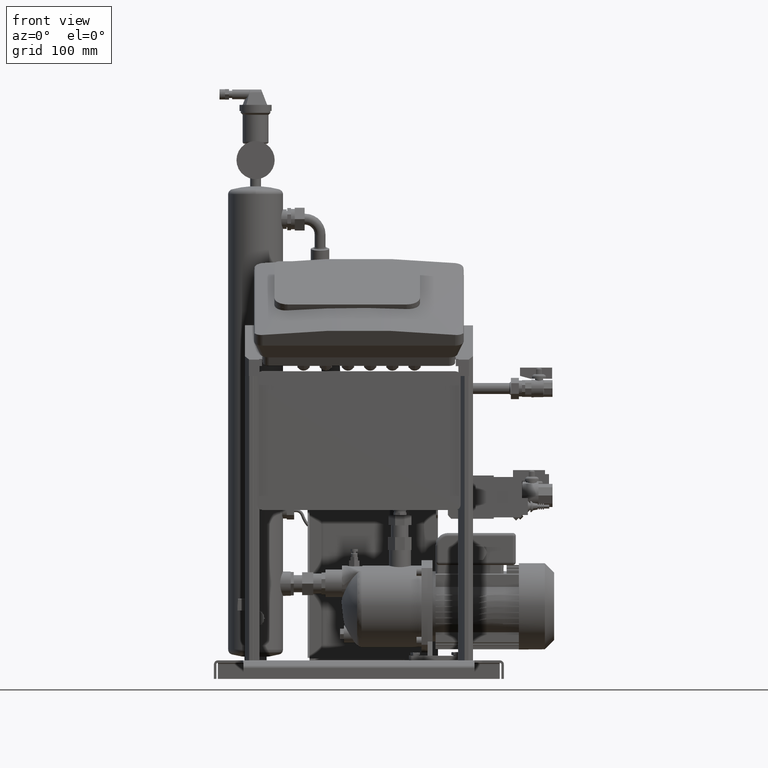
[diagram: clean part render]
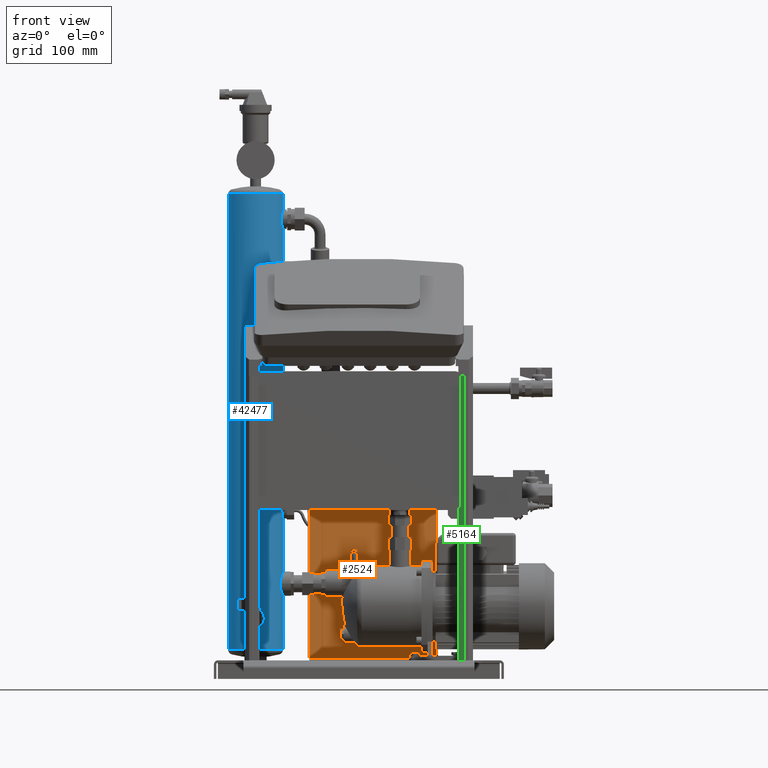
[diagram: same view with three faces highlighted in distinct colors, each labeled with its STEP entity id]
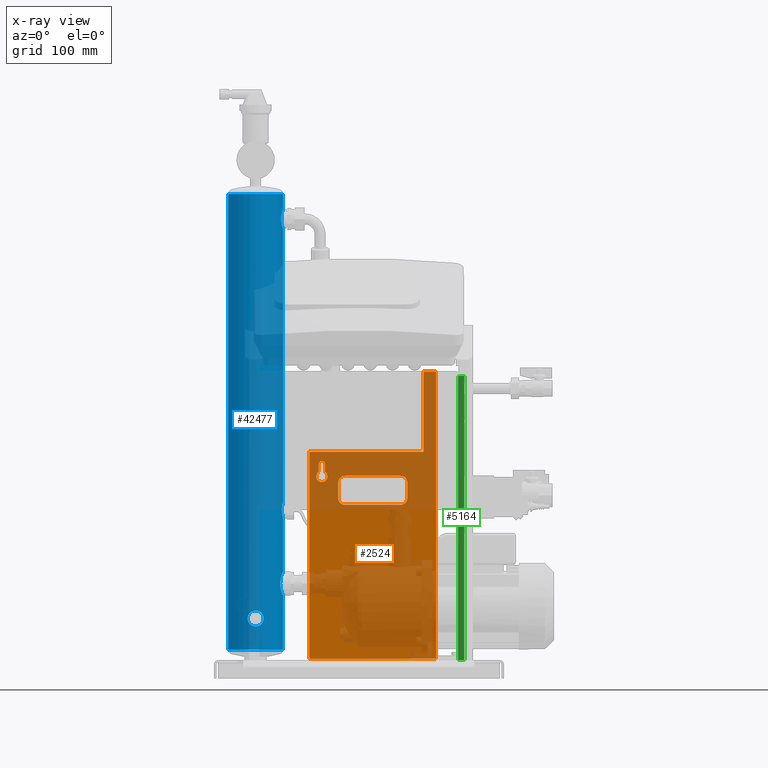
[diagram: x-ray of the same camera — body ghosted, the three highlighted faces saturated]
A machine part, front view with three faces highlighted in distinct colors.
The next image is the same camera in x-ray (body ghosted, the three faces saturated) — at least one of them is partly hidden behind the body in this view.
Their STEP definitions:

[orange] entity #2524 — the highlighted face is a freeform B-spline surface patch.
#2331=CARTESIAN_POINT('',(169.69937185534144,114.74999999896136,496.7500000000087));
#2332=CARTESIAN_POINT('',(-35.300628144670071,114.74999999896136,496.7500000000087));
#2333=CARTESIAN_POINT('',(169.69937185534138,114.74999999896136,31.750000000000739));
#2334=CARTESIAN_POINT('',(-35.300628144670128,114.74999999896136,31.750000000000739));
#2335=B_SPLINE_SURFACE_WITH_KNOTS('',1,1,((#2331,#2333),(#2332,#2334)),.UNSPECIFIED.,.F.,.F.,.U.,(2,2),(2,2),(0.0,205.00000000001151),(0.0,465.00000000000796),.UNSPECIFIED.);
#2336=CARTESIAN_POINT('',(-35.300628144670057,114.74999999896136,32.750000000011802));
#2337=VERTEX_POINT('',#2336);
#2338=CARTESIAN_POINT('',(-35.300628144661708,114.74999999896136,31.75000000000075));
#2339=VERTEX_POINT('',#2338);
#2340=CARTESIAN_POINT('',(-35.300628144661914,114.74999999896136,32.750000000011795));
#2341=DIRECTION('',(0.0,0.0,-1.0));
#2342=VECTOR('',#2341,1.000000000011056);
#2343=LINE('',#2340,#2342);
#2344=EDGE_CURVE('',#2337,#2339,#2343,.T.);
#2345=ORIENTED_EDGE('',*,*,#2344,.T.);
#2346=CARTESIAN_POINT('',(169.6993718553299,114.74999999896136,31.75000000000075));
#2347=VERTEX_POINT('',#2346);
#2348=CARTESIAN_POINT('',(-35.300628144661715,114.74999999896136,31.750000000000739));
#2349=DIRECTION('',(1.0,0.0,0.0));
#2350=VECTOR('',#2349,204.99999999999162);
#2351=LINE('',#2348,#2350);
#2352=EDGE_CURVE('',#2339,#2347,#2351,.T.);
#2353=ORIENTED_EDGE('',*,*,#2352,.T.);
#2354=CARTESIAN_POINT('',(169.69937185532984,114.74999999896136,32.750000000011816));
#2355=VERTEX_POINT('',#2354);
#2356=CARTESIAN_POINT('',(169.69937185534138,114.74999999896136,31.750000000000739));
#2357=DIRECTION('',(0.0,0.0,1.0));
#2358=VECTOR('',#2357,1.000000000011085);
#2359=LINE('',#2356,#2358);
#2360=EDGE_CURVE('',#2347,#2355,#2359,.T.);
#2361=ORIENTED_EDGE('',*,*,#2360,.T.);
#2362=CARTESIAN_POINT('',(169.69937185532984,114.74999999896136,496.75000000000193));
#2363=VERTEX_POINT('',#2362);
#2364=CARTESIAN_POINT('',(169.69937185532982,114.74999999896136,32.750000000011823));
#2365=DIRECTION('',(0.0,0.0,1.0));
#2366=VECTOR('',#2365,463.99999999999011);
#2367=LINE('',#2364,#2366);
#2368=EDGE_CURVE('',#2355,#2363,#2367,.T.);
#2369=ORIENTED_EDGE('',*,*,#2368,.T.);
#2370=CARTESIAN_POINT('',(149.69937185532996,114.74999999896136,496.7500000000087));
#2371=VERTEX_POINT('',#2370);
#2372=CARTESIAN_POINT('',(149.69937185532996,114.74999999896136,496.7500000000087));
#2373=DIRECTION('',(1.0,0.0,0.0));
#2374=VECTOR('',#2373,19.999999999999886);
#2375=LINE('',#2372,#2374);
#2376=EDGE_CURVE('',#2371,#2363,#2375,.T.);
#2377=ORIENTED_EDGE('',*,*,#2376,.F.);
#2378=CARTESIAN_POINT('',(149.69937185532996,114.74999999896136,366.7500000000087));
#2379=VERTEX_POINT('',#2378);
#2380=CARTESIAN_POINT('',(149.69937185532996,114.74999999896136,366.7500000000087));
#2381=DIRECTION('',(0.0,0.0,1.0));
#2382=VECTOR('',#2381,130.0);
#2383=LINE('',#2380,#2382);
#2384=EDGE_CURVE('',#2379,#2371,#2383,.T.);
#2385=ORIENTED_EDGE('',*,*,#2384,.F.);
#2386=CARTESIAN_POINT('',(109.69937185532993,114.74999999896136,366.74999999999278));
#2387=VERTEX_POINT('',#2386);
#2388=CARTESIAN_POINT('',(109.69937185532993,114.74999999896136,366.7500000000087));
#2389=DIRECTION('',(1.0,0.0,0.0));
#2390=VECTOR('',#2389,40.000000000000028);
#2391=LINE('',#2388,#2390);
#2392=EDGE_CURVE('',#2387,#2379,#2391,.T.);
#2393=ORIENTED_EDGE('',*,*,#2392,.F.);
#2394=CARTESIAN_POINT('',(54.699371855329929,114.74999999896136,366.74999999999278));
#2395=VERTEX_POINT('',#2394);
#2396=CARTESIAN_POINT('',(54.699371855329929,114.74999999896136,366.7500000000087));
#2397=DIRECTION('',(1.0,0.0,0.0));
#2398=VECTOR('',#2397,55.0);
#2399=LINE('',#2396,#2398);
#2400=EDGE_CURVE('',#2395,#2387,#2399,.T.);
#2401=ORIENTED_EDGE('',*,*,#2400,.F.);
#2402=CARTESIAN_POINT('',(-35.300628144670057,114.74999999896136,366.74999999998971));
#2403=VERTEX_POINT('',#2402);
#2404=CARTESIAN_POINT('',(-35.300628144670057,114.74999999896136,366.7500000000087));
#2405=DIRECTION('',(1.0,0.0,0.0));
#2406=VECTOR('',#2405,89.999999999999986);
#2407=LINE('',#2404,#2406);
#2408=EDGE_CURVE('',#2403,#2395,#2407,.T.);
#2409=ORIENTED_EDGE('',*,*,#2408,.F.);
#2410=CARTESIAN_POINT('',(-35.30062814467005,114.74999999896147,32.750000000011823));
#2411=DIRECTION('',(0.0,0.0,1.0));
#2412=VECTOR('',#2411,333.99999999997789);
#2413=LINE('',#2410,#2412);
#2414=EDGE_CURVE('',#2337,#2403,#2413,.T.);
#2415=ORIENTED_EDGE('',*,*,#2414,.F.);
#2416=EDGE_LOOP('',(#2345,#2353,#2361,#2369,#2377,#2385,#2393,#2401,#2409,#2415));
#2417=FACE_OUTER_BOUND('',#2416,.T.);
#2418=CARTESIAN_POINT('',(123.19937185532993,114.74999999935665,291.75000000000853));
#2419=VERTEX_POINT('',#2418);
#2420=CARTESIAN_POINT('',(112.19937185532993,114.74999999935665,280.75000000000853));
#2421=VERTEX_POINT('',#2420);
#2422=CARTESIAN_POINT('',(112.19937185532993,114.74999999896136,291.75000000000853));
#2423=DIRECTION('',(0.0,1.0,0.0));
#2424=DIRECTION('',(0.707106781186548,0.0,-0.707106781186548));
#2425=AXIS2_PLACEMENT_3D('',#2422,#2423,#2424);
#2426=CIRCLE('',#2425,11.0);
#2427=EDGE_CURVE('',#2419,#2421,#2426,.T.);
#2428=ORIENTED_EDGE('',*,*,#2427,.T.);
#2429=CARTESIAN_POINT('',(22.199371855329929,114.74999999935665,280.75000000000853));
#2430=VERTEX_POINT('',#2429);
#2431=CARTESIAN_POINT('',(112.19937185532993,114.74999999896136,280.75000000000853));
#2432=DIRECTION('',(-1.0,0.0,0.0));
#2433=VECTOR('',#2432,90.0);
#2434=LINE('',#2431,#2433);
#2435=EDGE_CURVE('',#2421,#2430,#2434,.T.);
#2436=ORIENTED_EDGE('',*,*,#2435,.T.);
#2437=CARTESIAN_POINT('',(11.199371855329929,114.74999999935665,291.75000000000853));
#2438=VERTEX_POINT('',#2437);
#2439=CARTESIAN_POINT('',(22.199371855329929,114.74999999896136,291.75000000000853));
#2440=DIRECTION('',(0.0,1.0,0.0));
#2441=DIRECTION('',(-0.707106781186548,0.0,-0.707106781186548));
#2442=AXIS2_PLACEMENT_3D('',#2439,#2440,#2441);
#2443=CIRCLE('',#2442,11.0);
#2444=EDGE_CURVE('',#2430,#2438,#2443,.T.);
#2445=ORIENTED_EDGE('',*,*,#2444,.T.);
#2446=CARTESIAN_POINT('',(11.199371855329929,114.74999999935665,316.75000000000853));
#2447=VERTEX_POINT('',#2446);
#2448=CARTESIAN_POINT('',(11.199371855329929,114.74999999896136,291.75000000000853));
#2449=DIRECTION('',(0.0,0.0,1.0));
#2450=VECTOR('',#2449,25.0);
#2451=LINE('',#2448,#2450);
#2452=EDGE_CURVE('',#2438,#2447,#2451,.T.);
#2453=ORIENTED_EDGE('',*,*,#2452,.T.);
#2454=CARTESIAN_POINT('',(22.199371855329929,114.74999999935665,327.75000000000853));
#2455=VERTEX_POINT('',#2454);
#2456=CARTESIAN_POINT('',(22.199371855329929,114.74999999896136,316.75000000000853));
#2457=DIRECTION('',(0.0,1.0,0.0));
#2458=DIRECTION('',(-0.707106781186548,0.0,0.707106781186548));
#2459=AXIS2_PLACEMENT_3D('',#2456,#2457,#2458);
#2460=CIRCLE('',#2459,11.0);
#2461=EDGE_CURVE('',#2447,#2455,#2460,.T.);
#2462=ORIENTED_EDGE('',*,*,#2461,.T.);
#2463=CARTESIAN_POINT('',(112.19937185532993,114.74999999935665,327.75000000000853));
#2464=VERTEX_POINT('',#2463);
#2465=CARTESIAN_POINT('',(22.199371855329929,114.74999999896136,327.75000000000853));
#2466=DIRECTION('',(1.0,0.0,0.0));
#2467=VECTOR('',#2466,90.0);
#2468=LINE('',#2465,#2467);
#2469=EDGE_CURVE('',#2455,#2464,#2468,.T.);
#2470=ORIENTED_EDGE('',*,*,#2469,.T.);
#2471=CARTESIAN_POINT('',(123.19937185532993,114.74999999935665,316.75000000000853));
#2472=VERTEX_POINT('',#2471);
#2473=CARTESIAN_POINT('',(112.19937185532993,114.74999999896136,316.75000000000853));
#2474=DIRECTION('',(0.0,1.0,0.0));
#2475=DIRECTION('',(0.707106781186548,0.0,0.707106781186548));
#2476=AXIS2_PLACEMENT_3D('',#2473,#2474,#2475);
#2477=CIRCLE('',#2476,11.0);
#2478=EDGE_CURVE('',#2464,#2472,#2477,.T.);
#2479=ORIENTED_EDGE('',*,*,#2478,.T.);
#2480=CARTESIAN_POINT('',(123.19937185532994,114.74999999896136,316.75000000000853));
#2481=DIRECTION('',(0.0,0.0,-1.0));
#2482=VECTOR('',#2481,25.0);
#2483=LINE('',#2480,#2482);
#2484=EDGE_CURVE('',#2472,#2419,#2483,.T.);
#2485=ORIENTED_EDGE('',*,*,#2484,.T.);
#2486=EDGE_LOOP('',(#2428,#2436,#2445,#2453,#2462,#2470,#2479,#2485));
#2487=FACE_BOUND('',#2486,.T.);
#2488=CARTESIAN_POINT('',(-20.300628144670071,114.74999999928889,346.75000000000864));
#2489=VERTEX_POINT('',#2488);
#2490=CARTESIAN_POINT('',(-10.300628144670071,114.74999999928889,346.75000000000864));
#2491=VERTEX_POINT('',#2490);
#2492=CARTESIAN_POINT('',(-15.300628144670071,114.74999999896136,346.75000000000858));
#2493=DIRECTION('',(0.0,1.0,0.0));
#2494=DIRECTION('',(-1.0,0.0,0.0));
#2495=AXIS2_PLACEMENT_3D('',#2492,#2493,#2494);
#2496=CIRCLE('',#2495,5.0);
#2497=EDGE_CURVE('',#2489,#2491,#2496,.T.);
#2498=ORIENTED_EDGE('',*,*,#2497,.T.);
#2499=CARTESIAN_POINT('',(-10.300628144670071,114.74999999928889,334.23331477400859));
#2500=VERTEX_POINT('',#2499);
#2501=CARTESIAN_POINT('',(-10.300628144670071,114.74999999896136,346.75000000000864));
#2502=DIRECTION('',(0.0,0.0,-1.0));
#2503=VECTOR('',#2502,12.51668522600005);
#2504=LINE('',#2501,#2503);
#2505=EDGE_CURVE('',#2491,#2500,#2504,.T.);
#2506=ORIENTED_EDGE('',*,*,#2505,.T.);
#2507=CARTESIAN_POINT('',(-20.300628144670071,114.74999999928889,334.23331477400859));
#2508=VERTEX_POINT('',#2507);
#2509=CARTESIAN_POINT('',(-15.300628144670071,114.74999999896136,326.75000000000858));
#2510=DIRECTION('',(0.0,1.0,0.0));
#2511=DIRECTION('',(-1.0,0.0,0.0));
#2512=AXIS2_PLACEMENT_3D('',#2509,#2510,#2511);
#2513=CIRCLE('',#2512,9.0);
#2514=EDGE_CURVE('',#2500,#2508,#2513,.T.);
#2515=ORIENTED_EDGE('',*,*,#2514,.T.);
#2516=CARTESIAN_POINT('',(-20.300628144670071,114.74999999896136,334.23331477400859));
#2517=DIRECTION('',(0.0,0.0,1.0));
#2518=VECTOR('',#2517,12.51668522600005);
#2519=LINE('',#2516,#2518);
#2520=EDGE_CURVE('',#2508,#2489,#2519,.T.);
#2521=ORIENTED_EDGE('',*,*,#2520,.T.);
#2522=EDGE_LOOP('',(#2498,#2506,#2515,#2521));
#2523=FACE_BOUND('',#2522,.T.);
#2524=ADVANCED_FACE('',(#2417,#2487,#2523),#2335,.T.);

[blue] entity #42477 — the highlighted cylindrical surface (edge-blend (fillet) strip) has radius 44.45 mm, axis along (0, 0, 1).
#41368=CARTESIAN_POINT('',(-122.75062814467046,-56.200000000000003,784.65299999999968));
#41369=VERTEX_POINT('',#41368);
#41388=CARTESIAN_POINT('',(-167.20062814467053,-11.75,784.65299999999968));
#41389=VERTEX_POINT('',#41388);
#41397=CARTESIAN_POINT('',(-122.75062814467046,-11.75,784.65299999999968));
#41398=DIRECTION('',(0.0,0.0,1.0));
#41399=DIRECTION('',(-1.0,0.0,0.0));
#41400=AXIS2_PLACEMENT_3D('',#41397,#41398,#41399);
#41401=CIRCLE('',#41400,44.450000000000017);
#41402=EDGE_CURVE('',#41389,#41369,#41401,.T.);
#41412=CARTESIAN_POINT('',(-167.20062814467036,-11.75,46.152999999999778));
#41413=VERTEX_POINT('',#41412);
#41414=CARTESIAN_POINT('',(-167.20062814467053,-11.75,784.65299999999968));
#41415=DIRECTION('',(0.0,0.0,-1.0));
#41416=VECTOR('',#41415,738.49999999999989);
#41417=LINE('',#41414,#41416);
#41418=EDGE_CURVE('',#41389,#41413,#41417,.T.);
#41421=CARTESIAN_POINT('',(-78.300628144670412,-11.749999999999972,784.65299999999968));
#41422=VERTEX_POINT('',#41421);
#41430=CARTESIAN_POINT('',(-78.300628144670384,-11.750000000000213,759.99299999999971));
#41431=VERTEX_POINT('',#41430);
#41432=CARTESIAN_POINT('',(-78.300628144670412,-11.749999999999972,784.65299999999968));
#41433=DIRECTION('',(0.0,0.0,-1.0));
#41434=VECTOR('',#41433,24.659999999999968);
#41435=LINE('',#41432,#41434);
#41436=EDGE_CURVE('',#41422,#41431,#41435,.T.);
#41461=CARTESIAN_POINT('',(-78.300628144670384,-11.750000000000213,728.19299999999998));
#41462=VERTEX_POINT('',#41461);
#41484=CARTESIAN_POINT('',(-78.300628144670327,-11.750000000000227,284.49299999999994));
#41485=VERTEX_POINT('',#41484);
#41486=CARTESIAN_POINT('',(-78.300628144670384,-11.750000000000213,728.19299999999998));
#41487=DIRECTION('',(0.0,0.0,-1.0));
#41488=VECTOR('',#41487,443.7000000000001);
#41489=LINE('',#41486,#41488);
#41490=EDGE_CURVE('',#41462,#41485,#41489,.T.);
#41515=CARTESIAN_POINT('',(-78.300628144670327,-11.750000000000231,258.69299999999998));
#41516=VERTEX_POINT('',#41515);
#41538=CARTESIAN_POINT('',(-78.300628144670327,-11.750000000000234,172.84299999999996));
#41539=VERTEX_POINT('',#41538);
#41540=CARTESIAN_POINT('',(-78.300628144670327,-11.750000000000231,258.69299999999998));
#41541=DIRECTION('',(0.0,0.0,-1.0));
#41542=VECTOR('',#41541,85.850000000000023);
#41543=LINE('',#41540,#41542);
#41544=EDGE_CURVE('',#41516,#41539,#41543,.T.);
#41577=CARTESIAN_POINT('',(-78.300628144670327,-11.750000000000234,133.34299999999993));
#41578=VERTEX_POINT('',#41577);
#41608=CARTESIAN_POINT('',(-78.300628144670327,-11.750000000000014,46.152999999999793));
#41609=VERTEX_POINT('',#41608);
#41610=CARTESIAN_POINT('',(-78.300628144670327,-11.750000000000234,133.34299999999993));
#41611=DIRECTION('',(0.0,0.0,-1.0));
#41612=VECTOR('',#41611,87.19000000000014);
#41613=LINE('',#41610,#41612);
#41614=EDGE_CURVE('',#41578,#41609,#41613,.T.);
#41640=CARTESIAN_POINT('',(-122.75062814467037,-56.200000000000003,46.152999999999778));
#41641=VERTEX_POINT('',#41640);
#41651=CARTESIAN_POINT('',(-122.75062814467037,-11.75,46.152999999999778));
#41652=DIRECTION('',(0.0,0.0,1.0));
#41653=DIRECTION('',(-1.0,0.0,0.0));
#41654=AXIS2_PLACEMENT_3D('',#41651,#41652,#41653);
#41655=CIRCLE('',#41654,44.449999999999989);
#41656=EDGE_CURVE('',#41413,#41641,#41655,.T.);
#41809=CARTESIAN_POINT('',(-109.85062814467037,-54.286954521921871,96.592999999999975));
#41810=VERTEX_POINT('',#41809);
#41826=CARTESIAN_POINT('',(-135.65062814467035,-54.286954521921302,96.592999999999975));
#41827=VERTEX_POINT('',#41826);
#41834=CARTESIAN_POINT('',(-109.85062814467037,-54.286954521921331,96.592999999999975));
#41835=CARTESIAN_POINT('',(-109.85062814467037,-54.286954521921871,95.777934568057788));
#41836=CARTESIAN_POINT('',(-109.92912043952188,-54.311025060096654,94.936647961189891));
#41837=CARTESIAN_POINT('',(-110.25793063236415,-54.408696919083923,93.266279271070715));
#41838=CARTESIAN_POINT('',(-110.50816024556315,-54.482208976837669,92.437174591993539));
#41839=CARTESIAN_POINT('',(-111.167802949009,-54.665706403215154,90.849562357232969));
#41840=CARTESIAN_POINT('',(-111.57773970973557,-54.77564695240109,90.089700598295707));
#41841=CARTESIAN_POINT('',(-112.52322290630346,-55.010142321943036,88.685628678367152));
#41842=CARTESIAN_POINT('',(-113.05884426497923,-55.134457304174248,88.041428925078108));
#41843=CARTESIAN_POINT('',(-114.19890918489017,-55.373499827166597,86.901364005167238));
#41844=CARTESIAN_POINT('',(-114.84303947888921,-55.496756751113935,86.365759890013607));
#41845=CARTESIAN_POINT('',(-116.24715248970119,-55.727420219338455,85.420211485164401));
#41846=CARTESIAN_POINT('',(-117.00712477453976,-55.834610512131789,85.010198964053899));
#41847=CARTESIAN_POINT('',(-118.59495544990423,-56.012524773831515,84.350471799266572));
#41848=CARTESIAN_POINT('',(-119.42416467570902,-56.083248214631553,84.100233170138864));
#41849=CARTESIAN_POINT('',(-121.09456390200944,-56.177015516404026,83.771454324819231));
#41850=CARTESIAN_POINT('',(-121.93577413963993,-56.200000000000728,83.692999999999913));
#41851=CARTESIAN_POINT('',(-123.56548214970084,-56.200000000000728,83.692999999999913));
#41852=CARTESIAN_POINT('',(-124.40669238733136,-56.177015516404026,83.771454324819231));
#41853=CARTESIAN_POINT('',(-126.07709161363178,-56.083248214631553,84.100233170138864));
#41854=CARTESIAN_POINT('',(-126.90630083943651,-56.012524773831515,84.350471799266572));
#41855=CARTESIAN_POINT('',(-128.49413151480098,-55.834610512131789,85.010198964053899));
#41856=CARTESIAN_POINT('',(-129.25410379963955,-55.727420219338455,85.420211485164444));
#41857=CARTESIAN_POINT('',(-130.65821681045153,-55.496756751113935,86.365759890013607));
#41858=CARTESIAN_POINT('',(-131.30234710445058,-55.373499827166597,86.901364005167238));
#41859=CARTESIAN_POINT('',(-132.44241202436149,-55.134457304174248,88.041428925078108));
#41860=CARTESIAN_POINT('',(-132.97803338303731,-55.010142321943036,88.685628678367152));
#41861=CARTESIAN_POINT('',(-133.92351657960506,-54.77564695240109,90.089700598295693));
#41862=CARTESIAN_POINT('',(-134.33345334033174,-54.665706403215154,90.849562357232941));
#41863=CARTESIAN_POINT('',(-134.9930960437776,-54.482208976837669,92.437174591993511));
#41864=CARTESIAN_POINT('',(-135.24332565697659,-54.408696919083923,93.266279271070715));
#41865=CARTESIAN_POINT('',(-135.57213584981889,-54.311025060096654,94.936647961189948));
#41866=CARTESIAN_POINT('',(-135.65062814467035,-54.286954521921302,95.777934568057788));
#41867=CARTESIAN_POINT('',(-135.65062814467035,-54.286954521921302,96.592999999999975));
#41868=B_SPLINE_CURVE_WITH_KNOTS('',3,(#41834,#41835,#41836,#41837,#41838,#41839,#41840,#41841,#41842,#41843,#41844,#41845,#41846,#41847,#41848,#41849,#41850,#41851,#41852,#41853,#41854,#41855,#41856,#41857,#41858,#41859,#41860,#41861,#41862,#41863,#41864,#41865,#41866,#41867),.UNSPECIFIED.,.F.,.U.,(4,2,2,2,2,2,2,2,2,2,2,2,2,2,2,2,4),(0.0,2.44519629582647,4.890392591652939,7.335588887479409,9.780785183305879,12.225347198397335,14.66990921348879,17.114471228580246,19.559033243671692,22.003595258763152,24.448157273854605,26.892719288946058,29.337281304037511,31.782477599863974,34.227673895690444,36.672870191516921,39.118066487343384),.UNSPECIFIED.);
#41869=EDGE_CURVE('',#41810,#41827,#41868,.T.);
#41881=CARTESIAN_POINT('',(-82.929277087731123,-31.5,153.09299999999993));
#41882=VERTEX_POINT('',#41881);
#41905=CARTESIAN_POINT('',(-82.929277087731123,-31.5,153.09299999999993));
#41906=CARTESIAN_POINT('',(-82.929277087731123,-31.5,153.72317246930874));
#41907=CARTESIAN_POINT('',(-82.914210584064392,-31.469715574907241,154.36244664206791));
#41908=CARTESIAN_POINT('',(-82.852637342391432,-31.344838002880351,155.64662502601516));
#41909=CARTESIAN_POINT('',(-82.806132987323139,-31.250250671314461,156.29152991695622));
#41910=CARTESIAN_POINT('',(-82.682952825139267,-30.995879142888043,157.57479718682256));
#41911=CARTESIAN_POINT('',(-82.60627968267309,-30.83608356485275,158.21325125741618));
#41912=CARTESIAN_POINT('',(-82.426339092060374,-30.452914523781139,159.47238453930646));
#41913=CARTESIAN_POINT('',(-82.323088281234419,-30.229544719923069,160.09306724168513));
#41914=CARTESIAN_POINT('',(-81.981654849385365,-29.470085997138995,161.91281892440003));
#41915=CARTESIAN_POINT('',(-81.711063918672693,-28.842666795384503,163.07136605728479));
#41916=CARTESIAN_POINT('',(-81.139264778516093,-27.399266076040483,165.21024056129733));
#41917=CARTESIAN_POINT('',(-80.838617021321852,-26.583114737519274,166.19060311934942));
#41918=CARTESIAN_POINT('',(-80.264728824495336,-24.848994293384749,167.92472356348395));
#41919=CARTESIAN_POINT('',(-79.970442902629628,-23.869308607279891,168.74068880953965));
#41920=CARTESIAN_POINT('',(-79.421432497514303,-21.730114979755854,170.18466789032186));
#41921=CARTESIAN_POINT('',(-79.167158467383558,-20.570567471005234,170.81279433539038));
#41922=CARTESIAN_POINT('',(-78.850829572563583,-18.749276428863595,171.57286438678267));
#41923=CARTESIAN_POINT('',(-78.756012118842506,-18.128077976188251,171.79637450812911));
#41924=CARTESIAN_POINT('',(-78.591700602288427,-16.868128196620095,172.17966708528928));
#41925=CARTESIAN_POINT('',(-78.522214115711193,-16.229374726021888,172.33944574213959));
#41926=CARTESIAN_POINT('',(-78.410990252144387,-14.945921934898255,172.59368087606094));
#41927=CARTESIAN_POINT('',(-78.369249953700233,-14.301136397385562,172.6881487376925));
#41928=CARTESIAN_POINT('',(-78.314068649494004,-13.017756790410203,172.81281094459905));
#41929=CARTESIAN_POINT('',(-78.300628144670327,-12.379162185577801,172.84299999999996));
#41930=CARTESIAN_POINT('',(-78.300628144670327,-11.750000000000234,172.84299999999996));
#41931=B_SPLINE_CURVE_WITH_KNOTS('',3,(#41905,#41906,#41907,#41908,#41909,#41910,#41911,#41912,#41913,#41914,#41915,#41916,#41917,#41918,#41919,#41920,#41921,#41922,#41923,#41924,#41925,#41926,#41927,#41928,#41929,#41930),.UNSPECIFIED.,.F.,.U.,(4,2,2,2,2,2,2,2,2,2,2,2,4),(60.448063434526603,62.338580842452963,64.229098250379323,66.119615658305676,68.010133066232058,71.791167882084778,75.572202697937513,79.347175811400604,83.122148924863694,85.009635481595211,86.897122038326785,88.784608595058344,90.67209515178989),.UNSPECIFIED.);
#41932=EDGE_CURVE('',#41882,#41539,#41931,.T.);
#41944=CARTESIAN_POINT('',(-80.213673622749099,-24.649999999999999,271.59299999999996));
#41945=VERTEX_POINT('',#41944);
#41968=CARTESIAN_POINT('',(-80.213673622749099,-24.649999999999999,271.59299999999996));
#41969=CARTESIAN_POINT('',(-80.213673622749099,-24.650000000000006,272.40806543194213));
#41970=CARTESIAN_POINT('',(-80.189603084574316,-24.571507705149088,273.24935203880989));
#41971=CARTESIAN_POINT('',(-80.091931225587331,-24.242697512307132,274.91972072892906));
#41972=CARTESIAN_POINT('',(-80.018419167833315,-23.992467899107396,275.74882540800638));
#41973=CARTESIAN_POINT('',(-79.83492174145556,-23.332825195661826,277.33643764276684));
#41974=CARTESIAN_POINT('',(-79.724981192269496,-22.922888434934976,278.09629940170407));
#41975=CARTESIAN_POINT('',(-79.490485822727635,-21.977405238367282,279.5003713216326));
#41976=CARTESIAN_POINT('',(-79.366170840496721,-21.441783879691684,280.14457107492177));
#41977=CARTESIAN_POINT('',(-79.1271283175044,-20.301718959780374,281.28463599483263));
#41978=CARTESIAN_POINT('',(-79.00387139355658,-19.657588665781986,281.82024010998623));
#41979=CARTESIAN_POINT('',(-78.773207925332258,-18.253475654969407,282.76578851483544));
#41980=CARTESIAN_POINT('',(-78.666017632538768,-17.493503370131293,283.17580103594605));
#41981=CARTESIAN_POINT('',(-78.488103370839468,-15.905672694766505,283.83552820073334));
#41982=CARTESIAN_POINT('',(-78.417379930039147,-15.076463468962174,284.08576682986103));
#41983=CARTESIAN_POINT('',(-78.323612628266574,-13.406064242661159,284.41454567518076));
#41984=CARTESIAN_POINT('',(-78.300628144670327,-12.564854005030384,284.49299999999988));
#41985=CARTESIAN_POINT('',(-78.300628144670327,-11.750000000000227,284.49299999999994));
#41986=B_SPLINE_CURVE_WITH_KNOTS('',3,(#41968,#41969,#41970,#41971,#41972,#41973,#41974,#41975,#41976,#41977,#41978,#41979,#41980,#41981,#41982,#41983,#41984,#41985),.UNSPECIFIED.,.F.,.U.,(4,2,2,2,2,2,2,2,4),(39.118066487343356,41.563262783169804,44.008459078996246,46.453655374822709,48.898851670649165,51.343413685740622,53.787975700832092,56.232537715923527,58.677099731014991),.UNSPECIFIED.);
#41987=EDGE_CURVE('',#41945,#41485,#41986,.T.);
#41999=CARTESIAN_POINT('',(-81.241683325511246,-27.649999999999999,744.09299999999973));
#42000=VERTEX_POINT('',#41999);
#42023=CARTESIAN_POINT('',(-81.241683325511246,-27.649999999999999,744.09299999999973));
#42024=CARTESIAN_POINT('',(-81.241683325511246,-27.649999999999999,745.10127622296511));
#42025=CARTESIAN_POINT('',(-81.203918591640388,-27.552551271052835,746.14077033970023));
#42026=CARTESIAN_POINT('',(-81.051430785800079,-27.145669550258397,748.20242200622965));
#42027=CARTESIAN_POINT('',(-80.936872511144571,-26.836359292222369,749.22461596219216));
#42028=CARTESIAN_POINT('',(-80.652105223609539,-26.022447014881443,751.18024209501311));
#42029=CARTESIAN_POINT('',(-80.481984897761322,-25.517199604772031,752.11540221923883));
#42030=CARTESIAN_POINT('',(-80.12039648211973,-24.353068484649157,753.8427378008065));
#42031=CARTESIAN_POINT('',(-79.929294530661139,-23.69407783281622,754.63491780891616));
#42032=CARTESIAN_POINT('',(-79.562832758390272,-22.292356495845524,756.03663914588719));
#42033=CARTESIAN_POINT('',(-79.374257056223627,-21.500385213083973,756.69557590779709));
#42034=CARTESIAN_POINT('',(-79.021780819533205,-19.772935386113204,757.85989649644705));
#42035=CARTESIAN_POINT('',(-78.858194861564783,-18.837451866200354,758.36536815020929));
#42036=CARTESIAN_POINT('',(-78.586743715740681,-16.881177803164974,759.17953320871288));
#42037=CARTESIAN_POINT('',(-78.478863273275635,-15.858668861465048,759.48887331083563));
#42038=CARTESIAN_POINT('',(-78.335760646197599,-13.796917129481699,759.89566449317113));
#42039=CARTESIAN_POINT('',(-78.300628144670384,-12.757645314093438,759.99299999999971));
#42040=CARTESIAN_POINT('',(-78.300628144670384,-11.750000000000213,759.99299999999971));
#42041=B_SPLINE_CURVE_WITH_KNOTS('',3,(#42023,#42024,#42025,#42026,#42027,#42028,#42029,#42030,#42031,#42032,#42033,#42034,#42035,#42036,#42037,#42038,#42039,#42040),.UNSPECIFIED.,.F.,.U.,(4,2,2,2,2,2,2,2,4),(48.38211688939429,51.406945558289806,54.431774227185329,57.456602896080838,60.481431564976347,63.504367507255132,66.527303449533903,69.550239391812667,72.573175334091445),.UNSPECIFIED.);
#42042=EDGE_CURVE('',#42000,#41431,#42041,.T.);
#42129=CARTESIAN_POINT('',(-78.300628144670384,-11.750000000000213,728.19299999999998));
#42130=CARTESIAN_POINT('',(-78.300628144670384,-12.757645314093441,728.19299999999998));
#42131=CARTESIAN_POINT('',(-78.335760646197599,-13.796917129481699,728.29033550682857));
#42132=CARTESIAN_POINT('',(-78.478863273275465,-15.858668861465048,728.69712668916418));
#42133=CARTESIAN_POINT('',(-78.586743715740681,-16.881177803164974,729.00646679128681));
#42134=CARTESIAN_POINT('',(-78.858194861564783,-18.837451866200354,729.82063184979074));
#42135=CARTESIAN_POINT('',(-79.021780819533205,-19.772935386113204,730.32610350355287));
#42136=CARTESIAN_POINT('',(-79.374257056223627,-21.500385213083973,731.49042409220317));
#42137=CARTESIAN_POINT('',(-79.562832758390272,-22.292356495845524,732.14936085411273));
#42138=CARTESIAN_POINT('',(-79.929294530661139,-23.69407783281622,733.55108219108354));
#42139=CARTESIAN_POINT('',(-80.12039648211973,-24.353068484649157,734.34326219919342));
#42140=CARTESIAN_POINT('',(-80.481984897761322,-25.517199604772031,736.07059778076098));
#42141=CARTESIAN_POINT('',(-80.652105223609396,-26.022447014881443,737.00575790498647));
#42142=CARTESIAN_POINT('',(-80.936872511144571,-26.836359292222369,738.96138403780731));
#42143=CARTESIAN_POINT('',(-81.051430785800079,-27.145669550258397,739.9835779937697));
#42144=CARTESIAN_POINT('',(-81.203918591640388,-27.552551271052835,742.04522966029936));
#42145=CARTESIAN_POINT('',(-81.241683325511246,-27.649999999999999,743.08472377703492));
#42146=CARTESIAN_POINT('',(-81.241683325511246,-27.649999999999999,744.09299999999973));
#42147=B_SPLINE_CURVE_WITH_KNOTS('',3,(#42129,#42130,#42131,#42132,#42133,#42134,#42135,#42136,#42137,#42138,#42139,#42140,#42141,#42142,#42143,#42144,#42145,#42146),.UNSPECIFIED.,.F.,.U.,(4,2,2,2,2,2,2,2,4),(24.191058444697145,27.213994386975923,30.236930329254694,33.259866271533461,36.282802213812239,39.307630882707755,42.332459551603264,45.357288220498788,48.38211688939429),.UNSPECIFIED.);
#42148=EDGE_CURVE('',#41462,#42000,#42147,.T.);
#42178=CARTESIAN_POINT('',(-78.300628144670327,-11.750000000000231,258.69299999999998));
#42179=CARTESIAN_POINT('',(-78.300628144670327,-12.564854005030384,258.6930000000001));
#42180=CARTESIAN_POINT('',(-78.323612628266574,-13.406064242661159,258.77145432481922));
#42181=CARTESIAN_POINT('',(-78.417379930039147,-15.076463468962174,259.10023317013889));
#42182=CARTESIAN_POINT('',(-78.488103370839468,-15.905672694766505,259.35047179926659));
#42183=CARTESIAN_POINT('',(-78.666017632538768,-17.493503370131293,260.01019896405387));
#42184=CARTESIAN_POINT('',(-78.773207925332258,-18.253475654969407,260.42021148516449));
#42185=CARTESIAN_POINT('',(-79.00387139355658,-19.657588665781986,261.36575989001369));
#42186=CARTESIAN_POINT('',(-79.1271283175044,-20.301718959780374,261.90136400516724));
#42187=CARTESIAN_POINT('',(-79.366170840496721,-21.441783879691684,263.04142892507809));
#42188=CARTESIAN_POINT('',(-79.490485822727635,-21.977405238367282,263.68562867836727));
#42189=CARTESIAN_POINT('',(-79.724981192269496,-22.922888434934976,265.08970059829591));
#42190=CARTESIAN_POINT('',(-79.83492174145556,-23.332825195661826,265.84956235723303));
#42191=CARTESIAN_POINT('',(-80.018419167833315,-23.992467899107396,267.43717459199354));
#42192=CARTESIAN_POINT('',(-80.091931225587331,-24.242697512307132,268.26627927107074));
#42193=CARTESIAN_POINT('',(-80.189603084574316,-24.571507705149088,269.93664796118992));
#42194=CARTESIAN_POINT('',(-80.213673622749099,-24.649999999999991,270.77793456805773));
#42195=CARTESIAN_POINT('',(-80.213673622749099,-24.649999999999999,271.59299999999996));
#42196=B_SPLINE_CURVE_WITH_KNOTS('',3,(#42178,#42179,#42180,#42181,#42182,#42183,#42184,#42185,#42186,#42187,#42188,#42189,#42190,#42191,#42192,#42193,#42194,#42195),.UNSPECIFIED.,.F.,.U.,(4,2,2,2,2,2,2,2,4),(19.55903324367166,22.003595258763117,24.448157273854569,26.892719288946022,29.337281304037482,31.782477599863945,34.227673895690415,36.672870191516878,39.118066487343356),.UNSPECIFIED.);
#42197=EDGE_CURVE('',#41516,#41945,#42196,.T.);
#42227=CARTESIAN_POINT('',(-78.300628144670327,-11.750000000000234,133.34299999999993));
#42228=CARTESIAN_POINT('',(-78.300628144670327,-12.379162185577805,133.34299999999999));
#42229=CARTESIAN_POINT('',(-78.314068649494004,-13.017756790410203,133.37318905540093));
#42230=CARTESIAN_POINT('',(-78.369249953700233,-14.301136397385562,133.49785126230742));
#42231=CARTESIAN_POINT('',(-78.410990252144387,-14.945921934898255,133.59231912393892));
#42232=CARTESIAN_POINT('',(-78.522214115711193,-16.229374726021888,133.8465542578603));
#42233=CARTESIAN_POINT('',(-78.591700602288427,-16.868128196620095,134.00633291471055));
#42234=CARTESIAN_POINT('',(-78.756012118842506,-18.128077976188251,134.38962549187079));
#42235=CARTESIAN_POINT('',(-78.850829572563583,-18.749276428863595,134.6131356132172));
#42236=CARTESIAN_POINT('',(-79.167158467383558,-20.570567471005234,135.37320566460946));
#42237=CARTESIAN_POINT('',(-79.421432497514303,-21.730114979755854,136.00133210967795));
#42238=CARTESIAN_POINT('',(-79.970442902629628,-23.869308607279891,137.44531119046025));
#42239=CARTESIAN_POINT('',(-80.264728824495336,-24.848994293384749,138.26127643651591));
#42240=CARTESIAN_POINT('',(-80.838617021321852,-26.583114737519274,139.99539688065039));
#42241=CARTESIAN_POINT('',(-81.139264778516093,-27.399266076040483,140.97575943870251));
#42242=CARTESIAN_POINT('',(-81.711063918672693,-28.842666795384503,143.11463394271505));
#42243=CARTESIAN_POINT('',(-81.981654849385365,-29.470085997138995,144.27318107559981));
#42244=CARTESIAN_POINT('',(-82.323088281234419,-30.229544719923069,146.09293275831467));
#42245=CARTESIAN_POINT('',(-82.426339092060374,-30.452914523781139,146.71361546069335));
#42246=CARTESIAN_POINT('',(-82.60627968267309,-30.83608356485275,147.97274874258363));
#42247=CARTESIAN_POINT('',(-82.682952825139267,-30.995879142888043,148.61120281317727));
#42248=CARTESIAN_POINT('',(-82.806132987323139,-31.250250671314461,149.89447008304367));
#42249=CARTESIAN_POINT('',(-82.852637342391432,-31.344838002880351,150.53937497398471));
#42250=CARTESIAN_POINT('',(-82.914210584064392,-31.469715574907241,151.82355335793196));
#42251=CARTESIAN_POINT('',(-82.929277087731123,-31.5,152.46282753069119));
#42252=CARTESIAN_POINT('',(-82.929277087731123,-31.5,153.09299999999993));
#42253=B_SPLINE_CURVE_WITH_KNOTS('',3,(#42227,#42228,#42229,#42230,#42231,#42232,#42233,#42234,#42235,#42236,#42237,#42238,#42239,#42240,#42241,#42242,#42243,#42244,#42245,#42246,#42247,#42248,#42249,#42250,#42251,#42252),.UNSPECIFIED.,.F.,.U.,(4,2,2,2,2,2,2,2,2,2,2,2,4),(30.224031717263291,32.111518273994854,33.999004830726385,35.886491387457937,37.773977944189475,41.548951057652573,45.323924171115678,49.104958986968406,52.885993802821133,54.776511210747501,56.667028618673861,58.557546026600235,60.448063434526603),.UNSPECIFIED.);
#42254=EDGE_CURVE('',#41578,#41882,#42253,.T.);
#42284=CARTESIAN_POINT('',(-135.65062814467035,-54.286954521921302,96.592999999999975));
#42285=CARTESIAN_POINT('',(-135.65062814467035,-54.286954521921302,97.408065431942106));
#42286=CARTESIAN_POINT('',(-135.57213584981889,-54.311025060096654,98.249352038809988));
#42287=CARTESIAN_POINT('',(-135.24332565697659,-54.408696919083923,99.919720728929249));
#42288=CARTESIAN_POINT('',(-134.9930960437776,-54.482208976837669,100.74882540800641));
#42289=CARTESIAN_POINT('',(-134.33345334033174,-54.665706403215154,102.33643764276698));
#42290=CARTESIAN_POINT('',(-133.92351657960506,-54.77564695240109,103.09629940170421));
#42291=CARTESIAN_POINT('',(-132.97803338303731,-55.010142321943036,104.50037132163274));
#42292=CARTESIAN_POINT('',(-132.44241202436149,-55.134457304174248,105.14457107492186));
#42293=CARTESIAN_POINT('',(-131.30234710445058,-55.373499827166597,106.28463599483266));
#42294=CARTESIAN_POINT('',(-130.65821681045153,-55.496756751113935,106.82024010998627));
#42295=CARTESIAN_POINT('',(-129.25410379963955,-55.727420219338455,107.76578851483548));
#42296=CARTESIAN_POINT('',(-128.49413151480098,-55.834610512131789,108.17580103594605));
#42297=CARTESIAN_POINT('',(-126.90630083943651,-56.012524773831515,108.83552820073332));
#42298=CARTESIAN_POINT('',(-126.07709161363178,-56.083248214631553,109.08576682986106));
#42299=CARTESIAN_POINT('',(-124.40669238733136,-56.177015516404026,109.41454567518068));
#42300=CARTESIAN_POINT('',(-123.56548214970084,-56.200000000000728,109.49299999999998));
#42301=CARTESIAN_POINT('',(-121.93577413963993,-56.200000000000728,109.49299999999998));
#42302=CARTESIAN_POINT('',(-121.09456390200944,-56.177015516404026,109.41454567518068));
#42303=CARTESIAN_POINT('',(-119.42416467570902,-56.083248214631553,109.08576682986106));
#42304=CARTESIAN_POINT('',(-118.59495544990423,-56.012524773831515,108.83552820073332));
#42305=CARTESIAN_POINT('',(-117.00712477453976,-55.834610512131789,108.17580103594605));
#42306=CARTESIAN_POINT('',(-116.24715248970119,-55.727420219338455,107.76578851483548));
#42307=CARTESIAN_POINT('',(-114.84303947888921,-55.496756751113935,106.82024010998632));
#42308=CARTESIAN_POINT('',(-114.19890918489017,-55.373499827166597,106.28463599483266));
#42309=CARTESIAN_POINT('',(-113.05884426497923,-55.134457304174248,105.14457107492186));
#42310=CARTESIAN_POINT('',(-112.52322290630346,-55.010142321943036,104.50037132163277));
#42311=CARTESIAN_POINT('',(-111.57773970973557,-54.77564695240109,103.09629940170421));
#42312=CARTESIAN_POINT('',(-111.167802949009,-54.665706403215154,102.33643764276701));
#42313=CARTESIAN_POINT('',(-110.50816024556315,-54.482208976837669,100.74882540800641));
#42314=CARTESIAN_POINT('',(-110.25793063236415,-54.408696919083923,99.919720728929249));
#42315=CARTESIAN_POINT('',(-109.92912043952188,-54.311025060096654,98.249352038809988));
#42316=CARTESIAN_POINT('',(-109.85062814467037,-54.286954521921871,97.408065431942106));
#42317=CARTESIAN_POINT('',(-109.85062814467037,-54.286954521921871,96.592999999999975));
#42318=B_SPLINE_CURVE_WITH_KNOTS('',3,(#42284,#42285,#42286,#42287,#42288,#42289,#42290,#42291,#42292,#42293,#42294,#42295,#42296,#42297,#42298,#42299,#42300,#42301,#42302,#42303,#42304,#42305,#42306,#42307,#42308,#42309,#42310,#42311,#42312,#42313,#42314,#42315,#42316,#42317),.UNSPECIFIED.,.F.,.U.,(4,2,2,2,2,2,2,2,2,2,2,2,2,2,2,2,4),(39.118066487343384,41.563262783169861,44.008459078996324,46.453655374822802,48.898851670649279,51.343413685740714,53.78797570083217,56.232537715923627,58.677099731015076,61.121661746106533,63.566223761197975,66.010785776289438,68.455347791380888,70.900544087207351,73.345740383033828,75.790936678860305,78.236132974686754),.UNSPECIFIED.);
#42319=EDGE_CURVE('',#41827,#41810,#42318,.T.);
#42435=CARTESIAN_POINT('',(-122.75062814467037,-11.75,46.152999999999778));
#42436=DIRECTION('',(0.0,0.0,1.0));
#42437=DIRECTION('',(-1.0,0.0,0.0));
#42438=AXIS2_PLACEMENT_3D('',#42435,#42436,#42437);
#42439=CIRCLE('',#42438,44.449999999999989);
#42440=EDGE_CURVE('',#41641,#41609,#42439,.T.);
#42445=CARTESIAN_POINT('',(-122.75062814467037,-11.75,9.227999999999781));
#42446=DIRECTION('',(0.0,0.0,1.0));
#42447=DIRECTION('',(-1.0,0.0,0.0));
#42448=AXIS2_PLACEMENT_3D('',#42445,#42446,#42447);
#42449=CYLINDRICAL_SURFACE('',#42448,44.450000000000003);
#42450=ORIENTED_EDGE('',*,*,#41418,.T.);
#42451=ORIENTED_EDGE('',*,*,#41656,.T.);
#42452=ORIENTED_EDGE('',*,*,#42440,.T.);
#42453=ORIENTED_EDGE('',*,*,#41614,.F.);
#42454=ORIENTED_EDGE('',*,*,#42254,.T.);
#42455=ORIENTED_EDGE('',*,*,#41932,.T.);
#42456=ORIENTED_EDGE('',*,*,#41544,.F.);
#42457=ORIENTED_EDGE('',*,*,#42197,.T.);
#42458=ORIENTED_EDGE('',*,*,#41987,.T.);
#42459=ORIENTED_EDGE('',*,*,#41490,.F.);
#42460=ORIENTED_EDGE('',*,*,#42148,.T.);
#42461=ORIENTED_EDGE('',*,*,#42042,.T.);
#42462=ORIENTED_EDGE('',*,*,#41436,.F.);
#42463=CARTESIAN_POINT('',(-122.75062814467046,-11.75,784.65299999999968));
#42464=DIRECTION('',(0.0,0.0,1.0));
#42465=DIRECTION('',(-1.0,0.0,0.0));
#42466=AXIS2_PLACEMENT_3D('',#42463,#42464,#42465);
#42467=CIRCLE('',#42466,44.450000000000017);
#42468=EDGE_CURVE('',#41369,#41422,#42467,.T.);
#42469=ORIENTED_EDGE('',*,*,#42468,.F.);
#42470=ORIENTED_EDGE('',*,*,#41402,.F.);
#42471=EDGE_LOOP('',(#42450,#42451,#42452,#42453,#42454,#42455,#42456,#42457,#42458,#42459,#42460,#42461,#42462,#42469,#42470));
#42472=FACE_OUTER_BOUND('',#42471,.T.);
#42473=ORIENTED_EDGE('',*,*,#41869,.T.);
#42474=ORIENTED_EDGE('',*,*,#42319,.T.);
#42475=EDGE_LOOP('',(#42473,#42474));
#42476=FACE_BOUND('',#42475,.T.);
#42477=ADVANCED_FACE('',(#42472,#42476),#42449,.T.);

[green] entity #5164 — the highlighted face is a freeform B-spline surface patch.
#5083=CARTESIAN_POINT('',(215.63155182721923,-261.05048423267863,28.750074235000167));
#5084=VERTEX_POINT('',#5083);
#5093=CARTESIAN_POINT('',(215.63155182721923,-261.05048423267863,489.75007423500006));
#5094=VERTEX_POINT('',#5093);
#5102=CARTESIAN_POINT('',(215.63155182721923,-261.05048423267863,489.75007423500006));
#5103=DIRECTION('',(0.0,0.0,-1.0));
#5104=VECTOR('',#5103,460.99999999999989);
#5105=LINE('',#5102,#5104);
#5106=EDGE_CURVE('',#5094,#5084,#5105,.T.);
#5111=CARTESIAN_POINT('',(-258.62610760415765,-425.01987415745316,28.750074235000113));
#5112=CARTESIAN_POINT('',(-258.62610760415765,-425.01987415745316,489.75007423500006));
#5113=CARTESIAN_POINT('',(-169.99683791970438,-659.85141495894027,28.750074235000113));
#5114=CARTESIAN_POINT('',(-169.99683791970438,-659.85141495894027,489.75007423500006));
#5115=CARTESIAN_POINT('',(64.834702881782803,-571.22214527448716,28.750074235000113));
#5116=CARTESIAN_POINT('',(64.834702881782803,-571.22214527448716,489.75007423500006));
#5117=CARTESIAN_POINT('',(299.66624368326995,-482.59287559003388,28.750074235000113));
#5118=CARTESIAN_POINT('',(299.66624368326995,-482.59287559003388,489.75007423500006));
#5119=CARTESIAN_POINT('',(211.03697399881679,-247.76133478854672,28.750074235000113));
#5120=CARTESIAN_POINT('',(211.03697399881679,-247.76133478854672,489.75007423500006));
#5121=CARTESIAN_POINT('',(122.40770431436354,-12.929793987059568,28.750074235000113));
#5122=CARTESIAN_POINT('',(122.40770431436354,-12.929793987059568,489.75007423500006));
#5123=CARTESIAN_POINT('',(-112.42383648712364,-101.55906367151272,28.750074235000113));
#5124=CARTESIAN_POINT('',(-112.42383648712364,-101.55906367151272,489.75007423500006));
#5125=CARTESIAN_POINT('',(-347.25537728861082,-190.18833335596602,28.750074235000113));
#5126=CARTESIAN_POINT('',(-347.25537728861082,-190.18833335596602,489.75007423500006));
#5127=CARTESIAN_POINT('',(-258.62610760415765,-425.01987415745316,28.750074235000113));
#5128=CARTESIAN_POINT('',(-258.62610760415765,-425.01987415745316,489.75007423500006));
#5136=(BOUNDED_SURFACE()B_SPLINE_SURFACE(1,2,((#5111,#5113,#5115,#5117,#5119,#5121,#5123,#5125,#5127),(#5112,#5114,#5116,#5118,#5120,#5122,#5124,#5126,#5128)),.UNSPECIFIED.,.F.,.T.,.U.)B_SPLINE_SURFACE_WITH_KNOTS((2,2),(3,2,2,2,3),(-1.836653386454182,2.220446E-016),(0.0,394.26987802551935,788.53975605103869,1182.809634076558,1577.0795121020774),.UNSPECIFIED.)GEOMETRIC_REPRESENTATION_ITEM()RATIONAL_B_SPLINE_SURFACE(((1.0,0.707106781186548,1.0,0.707106781186548,1.0,0.707106781186548,1.0,0.707106781186548,1.0),(1.0,0.707106781186548,1.0,0.707106781186548,1.0,0.707106781186548,1.0,0.707106781186548,1.0)))REPRESENTATION_ITEM('')SURFACE());
#5137=CARTESIAN_POINT('',(205.70544074632969,-234.75032439168103,28.750074235000167));
#5138=VERTEX_POINT('',#5137);
#5139=CARTESIAN_POINT('',(-23.794566802670417,-336.39060447299994,28.75007423500011));
#5140=DIRECTION('',(0.0,0.0,1.0));
#5141=DIRECTION('',(0.935583827894371,0.353104660097423,0.0));
#5142=AXIS2_PLACEMENT_3D('',#5139,#5140,#5141);
#5143=CIRCLE('',#5142,251.0000000000002);
#5144=EDGE_CURVE('',#5084,#5138,#5143,.T.);
#5145=ORIENTED_EDGE('',*,*,#5144,.F.);
#5146=ORIENTED_EDGE('',*,*,#5106,.F.);
#5147=CARTESIAN_POINT('',(205.70544074632969,-234.75032439168103,489.75007423500006));
#5148=VERTEX_POINT('',#5147);
#5149=CARTESIAN_POINT('',(-23.794566802670417,-336.39060447299994,489.75007423500006));
#5150=DIRECTION('',(0.0,0.0,1.0));
#5151=DIRECTION('',(0.935583827894371,0.353104660097423,0.0));
#5152=AXIS2_PLACEMENT_3D('',#5149,#5150,#5151);
#5153=CIRCLE('',#5152,251.0000000000002);
#5154=EDGE_CURVE('',#5094,#5148,#5153,.T.);
#5155=ORIENTED_EDGE('',*,*,#5154,.T.);
#5156=CARTESIAN_POINT('',(205.70544074632969,-234.75032439168103,489.75007423500006));
#5157=DIRECTION('',(0.0,0.0,-1.0));
#5158=VECTOR('',#5157,460.99999999999989);
#5159=LINE('',#5156,#5158);
#5160=EDGE_CURVE('',#5148,#5138,#5159,.T.);
#5161=ORIENTED_EDGE('',*,*,#5160,.T.);
#5162=EDGE_LOOP('',(#5145,#5146,#5155,#5161));
#5163=FACE_OUTER_BOUND('',#5162,.T.);
#5164=ADVANCED_FACE('',(#5163),#5136,.T.);